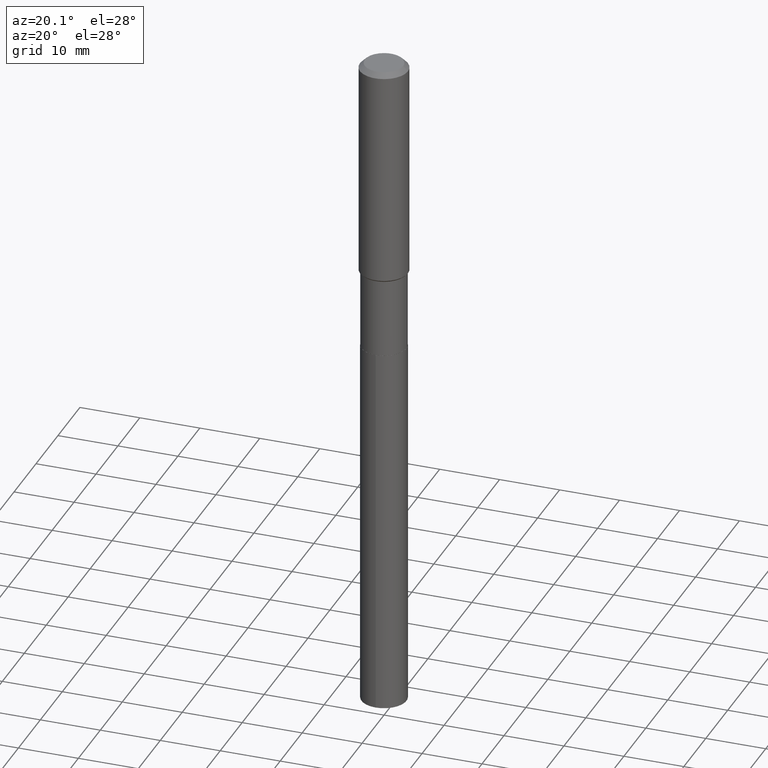
[diagram: clean part render]
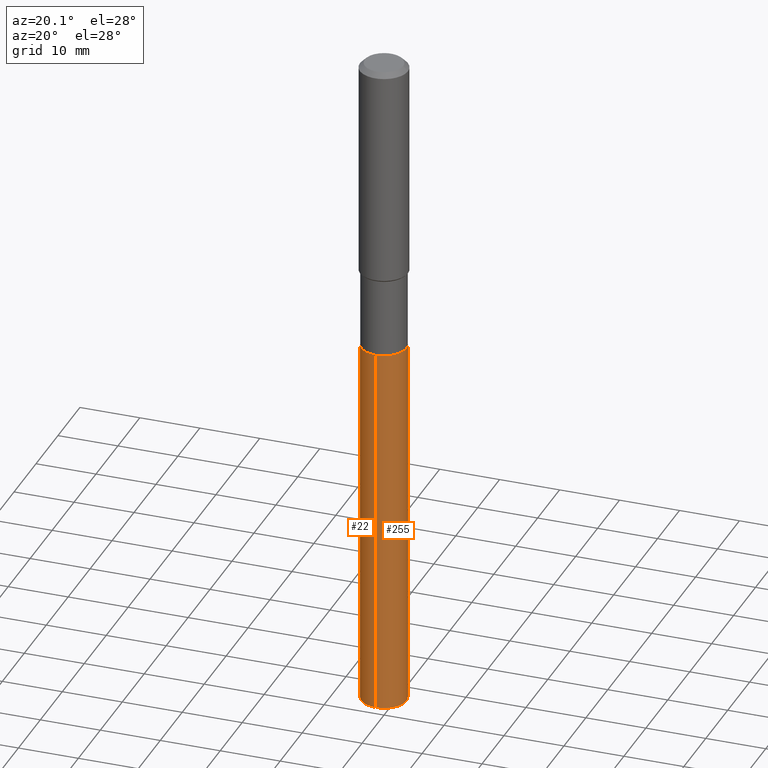
[diagram: same view with one multi-face feature highlighted, each face labeled with its STEP entity id]
A machine part, auxiliary view. The highlighted faces form ONE feature: a constant-radius fillet chain: 2 tangent blend faces with common blend radius 3.7503 mm. The faces share edges in the B-rep.
Their STEP definitions:
[1] entity #22 (Cylinder):
#6 = DIRECTION ( 'NONE',  ( -2.445397477310179380E-29, 3.491583485851871163E-15, 1.000000000000000000 ) ) ;
#9 = CARTESIAN_POINT ( 'NONE',  ( 1.083334689510655990E-28, -1.546765035066167871E-14, -4.430039118275453269 ) ) ;
#10 = EDGE_CURVE ( 'NONE', #184, #261, #487, .T. ) ;
#22 = ADVANCED_FACE ( 'NONE', ( #310 ), #237, .T. ) ;
#30 = VERTEX_POINT ( 'NONE', #93 ) ;
#35 = CARTESIAN_POINT ( 'NONE',  ( 1.049116349349836070E-15, 0.1476499999999931201, -1.968500000000000361 ) ) ;
#36 = DIRECTION ( 'NONE',  ( -2.445397477310179660E-29, 3.491583485851871163E-15, 1.000000000000000000 ) ) ;
#61 = VERTEX_POINT ( 'NONE', #318 ) ;
#77 = EDGE_CURVE ( 'NONE', #30, #261, #139, .T. ) ;
#93 = CARTESIAN_POINT ( 'NONE',  ( 1.049116349349896615E-15, 0.1476499999999931201, -1.968500000000000583 ) ) ;
#107 = AXIS2_PLACEMENT_3D ( 'NONE', #9, #144, #457 ) ;
#117 = VECTOR ( 'NONE', #6, 39.37007874015748143 ) ;
#118 = DIRECTION ( 'NONE',  ( -6.982962677686266711E-15, -1.000000000000000000, 3.700437512582815297E-15 ) ) ;
#137 = CARTESIAN_POINT ( 'NONE',  ( -1.031034439360329161E-15, -0.1476500000000068868, -1.968499999999999250 ) ) ;
#139 = CIRCLE ( 'NONE', #204, 0.1476500000000000035 ) ;
#143 = ORIENTED_EDGE ( 'NONE', *, *, #459, .F. ) ;
#144 = DIRECTION ( 'NONE',  ( -2.445397477310179660E-29, 3.491583485851871163E-15, 1.000000000000000000 ) ) ;
#165 = CARTESIAN_POINT ( 'NONE',  ( -1.031034439360269207E-15, -0.1476500000000155188, -4.430039118275453269 ) ) ;
#184 = VERTEX_POINT ( 'NONE', #165 ) ;
#201 = ORIENTED_EDGE ( 'NONE', *, *, #10, .T. ) ;
#204 = AXIS2_PLACEMENT_3D ( 'NONE', #488, #36, #453 ) ;
#210 = EDGE_CURVE ( 'NONE', #61, #184, #374, .T. ) ;
#211 = CARTESIAN_POINT ( 'NONE',  ( 4.813905344975440714E-29, -6.872981015512730918E-15, -1.968499999999999694 ) ) ;
#217 = DIRECTION ( 'NONE',  ( -2.445397477310179660E-29, 3.491583485851871163E-15, 1.000000000000000000 ) ) ;
#234 = VECTOR ( 'NONE', #293, 39.37007874015748143 ) ;
#237 = CYLINDRICAL_SURFACE ( 'NONE', #417, 0.1476500000000000035 ) ;
#257 = ORIENTED_EDGE ( 'NONE', *, *, #210, .T. ) ;
#261 = VERTEX_POINT ( 'NONE', #341 ) ;
#284 = ORIENTED_EDGE ( 'NONE', *, *, #77, .F. ) ;
#293 = DIRECTION ( 'NONE',  ( -2.445397477310179380E-29, 3.491583485851871163E-15, 1.000000000000000000 ) ) ;
#310 = FACE_OUTER_BOUND ( 'NONE', #387, .T. ) ;
#318 = CARTESIAN_POINT ( 'NONE',  ( 1.049116349349896615E-15, 0.1476499999999845714, -4.430039118275454157 ) ) ;
#341 = CARTESIAN_POINT ( 'NONE',  ( -1.031034439360329161E-15, -0.1476500000000068868, -1.968499999999999472 ) ) ;
#374 = CIRCLE ( 'NONE', #107, 0.1476500000000000035 ) ;
#387 = EDGE_LOOP ( 'NONE', ( #143, #257, #201, #284 ) ) ;
#417 = AXIS2_PLACEMENT_3D ( 'NONE', #211, #217, #118 ) ;
#453 = DIRECTION ( 'NONE',  ( -6.982962677686266711E-15, -1.000000000000000000, 3.700437512582815297E-15 ) ) ;
#457 = DIRECTION ( 'NONE',  ( -6.982962677686266711E-15, -1.000000000000000000, 3.700437512582815297E-15 ) ) ;
#459 = EDGE_CURVE ( 'NONE', #61, #30, #485, .T. ) ;
#485 = LINE ( 'NONE', #35, #117 ) ;
#487 = LINE ( 'NONE', #137, #234 ) ;
#488 = CARTESIAN_POINT ( 'NONE',  ( 4.813905344975441835E-29, -6.872981015512731707E-15, -1.968500000000000139 ) ) ;
[2] entity #255 (Cylinder):
#1 = DIRECTION ( 'NONE',  ( -2.445397477310179660E-29, 3.491583485851871163E-15, 1.000000000000000000 ) ) ;
#6 = DIRECTION ( 'NONE',  ( -2.445397477310179380E-29, 3.491583485851871163E-15, 1.000000000000000000 ) ) ;
#10 = EDGE_CURVE ( 'NONE', #184, #261, #487, .T. ) ;
#12 = FACE_OUTER_BOUND ( 'NONE', #142, .T. ) ;
#14 = CYLINDRICAL_SURFACE ( 'NONE', #399, 0.1476500000000000035 ) ;
#30 = VERTEX_POINT ( 'NONE', #93 ) ;
#35 = CARTESIAN_POINT ( 'NONE',  ( 1.049116349349836070E-15, 0.1476499999999931201, -1.968500000000000361 ) ) ;
#41 = ORIENTED_EDGE ( 'NONE', *, *, #480, .F. ) ;
#61 = VERTEX_POINT ( 'NONE', #318 ) ;
#75 = AXIS2_PLACEMENT_3D ( 'NONE', #218, #329, #455 ) ;
#85 = DIRECTION ( 'NONE',  ( -6.982962677686266711E-15, -1.000000000000000000, 3.700437512582815297E-15 ) ) ;
#93 = CARTESIAN_POINT ( 'NONE',  ( 1.049116349349896615E-15, 0.1476499999999931201, -1.968500000000000583 ) ) ;
#117 = VECTOR ( 'NONE', #6, 39.37007874015748143 ) ;
#137 = CARTESIAN_POINT ( 'NONE',  ( -1.031034439360329161E-15, -0.1476500000000068868, -1.968499999999999250 ) ) ;
#142 = EDGE_LOOP ( 'NONE', ( #301, #371, #41, #307 ) ) ;
#157 = AXIS2_PLACEMENT_3D ( 'NONE', #354, #214, #409 ) ;
#162 = EDGE_CURVE ( 'NONE', #184, #61, #295, .T. ) ;
#165 = CARTESIAN_POINT ( 'NONE',  ( -1.031034439360269207E-15, -0.1476500000000155188, -4.430039118275453269 ) ) ;
#169 = CIRCLE ( 'NONE', #75, 0.1476500000000000035 ) ;
#184 = VERTEX_POINT ( 'NONE', #165 ) ;
#214 = DIRECTION ( 'NONE',  ( -2.445397477310179660E-29, 3.491583485851871163E-15, 1.000000000000000000 ) ) ;
#218 = CARTESIAN_POINT ( 'NONE',  ( 4.813905344975441835E-29, -6.872981015512731707E-15, -1.968500000000000139 ) ) ;
#234 = VECTOR ( 'NONE', #293, 39.37007874015748143 ) ;
#255 = ADVANCED_FACE ( 'NONE', ( #12 ), #14, .T. ) ;
#261 = VERTEX_POINT ( 'NONE', #341 ) ;
#293 = DIRECTION ( 'NONE',  ( -2.445397477310179380E-29, 3.491583485851871163E-15, 1.000000000000000000 ) ) ;
#295 = CIRCLE ( 'NONE', #157, 0.1476500000000000035 ) ;
#301 = ORIENTED_EDGE ( 'NONE', *, *, #162, .T. ) ;
#307 = ORIENTED_EDGE ( 'NONE', *, *, #10, .F. ) ;
#318 = CARTESIAN_POINT ( 'NONE',  ( 1.049116349349896615E-15, 0.1476499999999845714, -4.430039118275454157 ) ) ;
#329 = DIRECTION ( 'NONE',  ( -2.445397477310179660E-29, 3.491583485851871163E-15, 1.000000000000000000 ) ) ;
#336 = CARTESIAN_POINT ( 'NONE',  ( 4.813905344975440714E-29, -6.872981015512730918E-15, -1.968499999999999694 ) ) ;
#341 = CARTESIAN_POINT ( 'NONE',  ( -1.031034439360329161E-15, -0.1476500000000068868, -1.968499999999999472 ) ) ;
#354 = CARTESIAN_POINT ( 'NONE',  ( 1.083334689510655990E-28, -1.546765035066167871E-14, -4.430039118275453269 ) ) ;
#371 = ORIENTED_EDGE ( 'NONE', *, *, #459, .T. ) ;
#399 = AXIS2_PLACEMENT_3D ( 'NONE', #336, #1, #85 ) ;
#409 = DIRECTION ( 'NONE',  ( -6.982962677686266711E-15, -1.000000000000000000, 3.700437512582815297E-15 ) ) ;
#455 = DIRECTION ( 'NONE',  ( -6.982962677686266711E-15, -1.000000000000000000, 3.700437512582815297E-15 ) ) ;
#459 = EDGE_CURVE ( 'NONE', #61, #30, #485, .T. ) ;
#480 = EDGE_CURVE ( 'NONE', #261, #30, #169, .T. ) ;
#485 = LINE ( 'NONE', #35, #117 ) ;
#487 = LINE ( 'NONE', #137, #234 ) ;